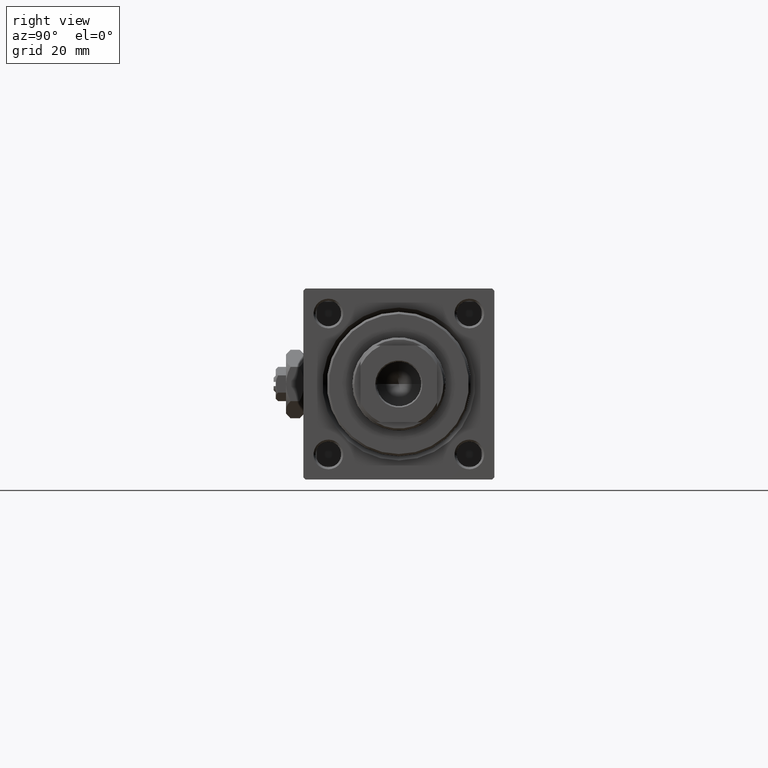
[diagram: clean part render]
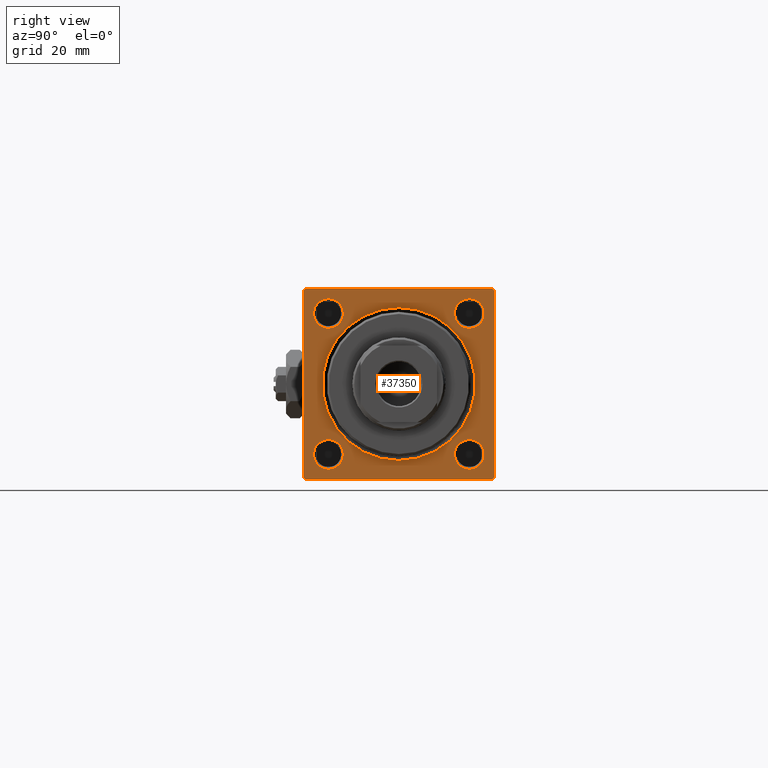
[diagram: same view with one face highlighted and labeled with its STEP entity id]
A machine part, right view. The second image highlights one B-rep face of the part: STEP entity #37350.
In plain terms, the highlighted planar face has unit normal (-1, 0, 0).
Its self-contained STEP definition (entity closure, byte-faithful):
#14 = EDGE_LOOP ( 'NONE', ( #21148, #5784, #15631, #33805, #32784, #37379, #23495, #45369 ) ) ;
#77 = DIRECTION ( 'NONE',  ( -1.000000000000000000, 0.000000000000000000, -0.000000000000000000 ) ) ;
#824 = EDGE_CURVE ( 'NONE', #4362, #49079, #9340, .T. ) ;
#1001 = EDGE_CURVE ( 'NONE', #14637, #43095, #42192, .T. ) ;
#1114 = CARTESIAN_POINT ( 'NONE',  ( 123.0000000000000142, -22.49999999999999645, -21.99999999999997868 ) ) ;
#1279 = CARTESIAN_POINT ( 'NONE',  ( 123.0000000000000142, 16.59999999999999787, -16.60000000000000497 ) ) ;
#1806 = CARTESIAN_POINT ( 'NONE',  ( 123.0000000000000142, 22.50000000000000355, -22.00000000000001066 ) ) ;
#1945 = FACE_BOUND ( 'NONE', #20656, .T. ) ;
#2803 = DIRECTION ( 'NONE',  ( 0.000000000000000000, 0.000000000000000000, 1.000000000000000000 ) ) ;
#2850 = DIRECTION ( 'NONE',  ( 0.000000000000000000, 0.7071067811865425767, -0.7071067811865525687 ) ) ;
#3520 = VERTEX_POINT ( 'NONE', #8225 ) ;
#3553 = EDGE_CURVE ( 'NONE', #38296, #43195, #37212, .T. ) ;
#4212 = AXIS2_PLACEMENT_3D ( 'NONE', #32170, #47033, #46512 ) ;
#4362 = VERTEX_POINT ( 'NONE', #22817 ) ;
#4507 = VERTEX_POINT ( 'NONE', #5040 ) ;
#4555 = CARTESIAN_POINT ( 'NONE',  ( 123.0000000000000142, -22.49999999999999645, 22.00000000000000711 ) ) ;
#4666 = CARTESIAN_POINT ( 'NONE',  ( 123.0000000000000142, 22.50000000000000355, -22.49999999999999645 ) ) ;
#4875 = PLANE ( 'NONE',  #20660 ) ;
#5040 = CARTESIAN_POINT ( 'NONE',  ( 123.0000000000000142, 16.59999999999999787, 13.10000000000001386 ) ) ;
#5126 = FACE_BOUND ( 'NONE', #28992, .T. ) ;
#5784 = ORIENTED_EDGE ( 'NONE', *, *, #17806, .T. ) ;
#5986 = DIRECTION ( 'NONE',  ( -1.000000000000000000, 0.000000000000000000, -0.000000000000000000 ) ) ;
#6030 = VECTOR ( 'NONE', #16912, 1000.000000000000000 ) ;
#6072 = CARTESIAN_POINT ( 'NONE',  ( 123.0000000000000142, 22.50000000000000355, -21.99999999999999645 ) ) ;
#6300 = LINE ( 'NONE', #1806, #21353 ) ;
#6510 = EDGE_LOOP ( 'NONE', ( #17899, #24208 ) ) ;
#7182 = CARTESIAN_POINT ( 'NONE',  ( 123.0000000000000142, 22.00000000000000355, -22.49999999999999645 ) ) ;
#8225 = CARTESIAN_POINT ( 'NONE',  ( 123.0000000000000142, -21.99999999999998224, -22.50000000000000000 ) ) ;
#9056 = EDGE_CURVE ( 'NONE', #43095, #14637, #25483, .T. ) ;
#9086 = FACE_OUTER_BOUND ( 'NONE', #14, .T. ) ;
#9340 = CIRCLE ( 'NONE', #25343, 3.499999999999989342 ) ;
#9705 = EDGE_CURVE ( 'NONE', #43195, #31136, #45135, .T. ) ;
#9783 = AXIS2_PLACEMENT_3D ( 'NONE', #20390, #45173, #20123 ) ;
#10197 = CARTESIAN_POINT ( 'NONE',  ( 123.0000000000000142, -16.60000000000000497, -16.60000000000000497 ) ) ;
#10798 = VERTEX_POINT ( 'NONE', #6072 ) ;
#11899 = ORIENTED_EDGE ( 'NONE', *, *, #17361, .T. ) ;
#12151 = CARTESIAN_POINT ( 'NONE',  ( 123.0000000000000142, -21.99999999999998224, 22.49999999999999289 ) ) ;
#12252 = ORIENTED_EDGE ( 'NONE', *, *, #16849, .T. ) ;
#12701 = CARTESIAN_POINT ( 'NONE',  ( 123.0000000000000142, 22.50000000000000355, 22.50000000000000355 ) ) ;
#13146 = CIRCLE ( 'NONE', #51063, 3.499999999999989342 ) ;
#13305 = VECTOR ( 'NONE', #41577, 1000.000000000000000 ) ;
#13367 = VERTEX_POINT ( 'NONE', #29123 ) ;
#13618 = DIRECTION ( 'NONE',  ( 0.000000000000000000, 0.000000000000000000, 1.000000000000000000 ) ) ;
#14637 = VERTEX_POINT ( 'NONE', #32369 ) ;
#14737 = CIRCLE ( 'NONE', #44238, 3.499999999999989342 ) ;
#14802 = ORIENTED_EDGE ( 'NONE', *, *, #824, .T. ) ;
#15631 = ORIENTED_EDGE ( 'NONE', *, *, #45344, .F. ) ;
#15819 = CARTESIAN_POINT ( 'NONE',  ( 123.0000000000000142, 16.59999999999999787, -20.09999999999999432 ) ) ;
#16013 = DIRECTION ( 'NONE',  ( 0.000000000000000000, 0.000000000000000000, 1.000000000000000000 ) ) ;
#16849 = EDGE_CURVE ( 'NONE', #4507, #31023, #13146, .T. ) ;
#16912 = DIRECTION ( 'NONE',  ( 0.000000000000000000, -1.000000000000000000, -2.312964634635742957E-16 ) ) ;
#17361 = EDGE_CURVE ( 'NONE', #13367, #46554, #42634, .T. ) ;
#17680 = CARTESIAN_POINT ( 'NONE',  ( 123.0000000000000142, 22.50000000000000355, 21.99999999999997513 ) ) ;
#17806 = EDGE_CURVE ( 'NONE', #47837, #3520, #47712, .T. ) ;
#17899 = ORIENTED_EDGE ( 'NONE', *, *, #25686, .T. ) ;
#18127 = AXIS2_PLACEMENT_3D ( 'NONE', #27523, #77, #48104 ) ;
#18700 = CARTESIAN_POINT ( 'NONE',  ( 123.0000000000000142, -21.99999999999999645, -22.50000000000000000 ) ) ;
#19416 = DIRECTION ( 'NONE',  ( -1.000000000000000000, 0.000000000000000000, -0.000000000000000000 ) ) ;
#19455 = AXIS2_PLACEMENT_3D ( 'NONE', #31854, #51655, #20251 ) ;
#20123 = DIRECTION ( 'NONE',  ( 0.000000000000000000, 0.000000000000000000, 1.000000000000000000 ) ) ;
#20251 = DIRECTION ( 'NONE',  ( 0.000000000000000000, 0.000000000000000000, 1.000000000000000000 ) ) ;
#20390 = CARTESIAN_POINT ( 'NONE',  ( 123.0000000000000142, 0.000000000000000000, 0.000000000000000000 ) ) ;
#20656 = EDGE_LOOP ( 'NONE', ( #12252, #43173 ) ) ;
#20660 = AXIS2_PLACEMENT_3D ( 'NONE', #21730, #21997, #25172 ) ;
#20695 = VECTOR ( 'NONE', #34339, 1000.000000000000000 ) ;
#21148 = ORIENTED_EDGE ( 'NONE', *, *, #41893, .T. ) ;
#21232 = EDGE_CURVE ( 'NONE', #41021, #10798, #51109, .T. ) ;
#21353 = VECTOR ( 'NONE', #26334, 1000.000000000000000 ) ;
#21393 = CIRCLE ( 'NONE', #30658, 18.00000000000000355 ) ;
#21730 = CARTESIAN_POINT ( 'NONE',  ( 123.0000000000000142, 0.000000000000000000, 0.000000000000000000 ) ) ;
#21884 = VECTOR ( 'NONE', #40361, 1000.000000000000000 ) ;
#21997 = DIRECTION ( 'NONE',  ( -1.000000000000000000, 0.000000000000000000, -0.000000000000000000 ) ) ;
#22052 = CARTESIAN_POINT ( 'NONE',  ( 123.0000000000000142, 16.59999999999999787, 16.60000000000000497 ) ) ;
#22817 = CARTESIAN_POINT ( 'NONE',  ( 123.0000000000000142, 16.59999999999999787, -13.10000000000001386 ) ) ;
#23127 = VECTOR ( 'NONE', #2850, 999.9999999999998863 ) ;
#23280 = CARTESIAN_POINT ( 'NONE',  ( 123.0000000000000142, 21.99999999999996092, 22.50000000000000355 ) ) ;
#23495 = ORIENTED_EDGE ( 'NONE', *, *, #3553, .T. ) ;
#24078 = CARTESIAN_POINT ( 'NONE',  ( 123.0000000000000142, 16.59999999999999787, 20.09999999999999432 ) ) ;
#24208 = ORIENTED_EDGE ( 'NONE', *, *, #37752, .T. ) ;
#25172 = DIRECTION ( 'NONE',  ( -0.000000000000000000, 0.000000000000000000, 1.000000000000000000 ) ) ;
#25343 = AXIS2_PLACEMENT_3D ( 'NONE', #1279, #49813, #33464 ) ;
#25483 = CIRCLE ( 'NONE', #37315, 3.499999999999989342 ) ;
#25686 = EDGE_CURVE ( 'NONE', #46658, #51883, #49672, .T. ) ;
#25751 = EDGE_CURVE ( 'NONE', #41021, #38296, #50727, .T. ) ;
#25789 = AXIS2_PLACEMENT_3D ( 'NONE', #50816, #19416, #46868 ) ;
#26334 = DIRECTION ( 'NONE',  ( -0.000000000000000000, 0.7071067811865573427, 0.7071067811865378028 ) ) ;
#26935 = VECTOR ( 'NONE', #27094, 1000.000000000000000 ) ;
#27094 = DIRECTION ( 'NONE',  ( 0.000000000000000000, 0.000000000000000000, -1.000000000000000000 ) ) ;
#27523 = CARTESIAN_POINT ( 'NONE',  ( 123.0000000000000142, 16.59999999999999787, -16.60000000000000497 ) ) ;
#27894 = CARTESIAN_POINT ( 'NONE',  ( 123.0000000000000142, -16.59999999999999787, 13.10000000000000675 ) ) ;
#28190 = ORIENTED_EDGE ( 'NONE', *, *, #35347, .T. ) ;
#28315 = CARTESIAN_POINT ( 'NONE',  ( 123.0000000000000142, 21.99999999999996092, 22.50000000000000355 ) ) ;
#28992 = EDGE_LOOP ( 'NONE', ( #39127, #14802 ) ) ;
#29118 = FACE_BOUND ( 'NONE', #6510, .T. ) ;
#29123 = CARTESIAN_POINT ( 'NONE',  ( 123.0000000000000142, 2.204364238465235822E-15, 18.00000000000000355 ) ) ;
#29844 = CARTESIAN_POINT ( 'NONE',  ( 123.0000000000000142, -22.49999999999999645, 22.49999999999999289 ) ) ;
#29993 = CARTESIAN_POINT ( 'NONE',  ( 123.0000000000000142, -16.59999999999999787, 20.09999999999998721 ) ) ;
#30658 = AXIS2_PLACEMENT_3D ( 'NONE', #44243, #47413, #16013 ) ;
#31023 = VERTEX_POINT ( 'NONE', #24078 ) ;
#31136 = VERTEX_POINT ( 'NONE', #4555 ) ;
#31406 = CARTESIAN_POINT ( 'NONE',  ( 123.0000000000000142, -16.60000000000000497, -13.10000000000001386 ) ) ;
#31854 = CARTESIAN_POINT ( 'NONE',  ( 123.0000000000000142, -16.60000000000000497, -16.60000000000000497 ) ) ;
#32170 = CARTESIAN_POINT ( 'NONE',  ( 123.0000000000000142, -16.59999999999999787, 16.59999999999999787 ) ) ;
#32369 = CARTESIAN_POINT ( 'NONE',  ( 123.0000000000000142, -16.60000000000000497, -20.09999999999999432 ) ) ;
#32483 = DIRECTION ( 'NONE',  ( -0.000000000000000000, -0.7071067811865573427, -0.7071067811865378028 ) ) ;
#32784 = ORIENTED_EDGE ( 'NONE', *, *, #21232, .F. ) ;
#32994 = CARTESIAN_POINT ( 'NONE',  ( 123.0000000000000142, -22.49999999999999645, 22.00000000000000711 ) ) ;
#33346 = FACE_BOUND ( 'NONE', #41692, .T. ) ;
#33464 = DIRECTION ( 'NONE',  ( 0.000000000000000000, 0.000000000000000000, 1.000000000000000000 ) ) ;
#33690 = EDGE_CURVE ( 'NONE', #40842, #10798, #6300, .T. ) ;
#33805 = ORIENTED_EDGE ( 'NONE', *, *, #33690, .T. ) ;
#34339 = DIRECTION ( 'NONE',  ( 0.000000000000000000, 0.000000000000000000, -1.000000000000000000 ) ) ;
#35347 = EDGE_CURVE ( 'NONE', #46554, #13367, #21393, .T. ) ;
#36099 = DIRECTION ( 'NONE',  ( -1.000000000000000000, 0.000000000000000000, -0.000000000000000000 ) ) ;
#36375 = ORIENTED_EDGE ( 'NONE', *, *, #9056, .T. ) ;
#37212 = LINE ( 'NONE', #12701, #6030 ) ;
#37315 = AXIS2_PLACEMENT_3D ( 'NONE', #10197, #5986, #2803 ) ;
#37350 = ADVANCED_FACE ( 'NONE', ( #1945, #29118, #33346, #5126, #45236, #9086 ), #4875, .F. ) ;
#37379 = ORIENTED_EDGE ( 'NONE', *, *, #25751, .T. ) ;
#37451 = EDGE_CURVE ( 'NONE', #49079, #4362, #40887, .T. ) ;
#37752 = EDGE_CURVE ( 'NONE', #51883, #46658, #14737, .T. ) ;
#38296 = VERTEX_POINT ( 'NONE', #28315 ) ;
#39127 = ORIENTED_EDGE ( 'NONE', *, *, #37451, .T. ) ;
#40361 = DIRECTION ( 'NONE',  ( 0.000000000000000000, -0.7071067811865573427, 0.7071067811865378028 ) ) ;
#40814 = LINE ( 'NONE', #4666, #13305 ) ;
#40842 = VERTEX_POINT ( 'NONE', #7182 ) ;
#40887 = CIRCLE ( 'NONE', #18127, 3.499999999999989342 ) ;
#41021 = VERTEX_POINT ( 'NONE', #17680 ) ;
#41577 = DIRECTION ( 'NONE',  ( 0.000000000000000000, -1.000000000000000000, -7.709882115452476934E-17 ) ) ;
#41692 = EDGE_LOOP ( 'NONE', ( #51990, #36375 ) ) ;
#41893 = EDGE_CURVE ( 'NONE', #31136, #47837, #46476, .T. ) ;
#42192 = CIRCLE ( 'NONE', #19455, 3.499999999999989342 ) ;
#42634 = CIRCLE ( 'NONE', #9783, 18.00000000000000355 ) ;
#42944 = CARTESIAN_POINT ( 'NONE',  ( 123.0000000000000142, 22.50000000000000355, 22.50000000000000355 ) ) ;
#43095 = VERTEX_POINT ( 'NONE', #31406 ) ;
#43173 = ORIENTED_EDGE ( 'NONE', *, *, #43717, .T. ) ;
#43195 = VERTEX_POINT ( 'NONE', #12151 ) ;
#43717 = EDGE_CURVE ( 'NONE', #31023, #4507, #45163, .T. ) ;
#44238 = AXIS2_PLACEMENT_3D ( 'NONE', #45053, #36099, #52181 ) ;
#44243 = CARTESIAN_POINT ( 'NONE',  ( 123.0000000000000142, 0.000000000000000000, 0.000000000000000000 ) ) ;
#45053 = CARTESIAN_POINT ( 'NONE',  ( 123.0000000000000142, -16.59999999999999787, 16.59999999999999787 ) ) ;
#45135 = LINE ( 'NONE', #32994, #49113 ) ;
#45163 = CIRCLE ( 'NONE', #25789, 3.499999999999989342 ) ;
#45173 = DIRECTION ( 'NONE',  ( -1.000000000000000000, 0.000000000000000000, -0.000000000000000000 ) ) ;
#45236 = FACE_BOUND ( 'NONE', #45949, .T. ) ;
#45344 = EDGE_CURVE ( 'NONE', #40842, #3520, #40814, .T. ) ;
#45369 = ORIENTED_EDGE ( 'NONE', *, *, #9705, .T. ) ;
#45671 = CARTESIAN_POINT ( 'NONE',  ( 123.0000000000000142, 0.000000000000000000, -18.00000000000000355 ) ) ;
#45949 = EDGE_LOOP ( 'NONE', ( #28190, #11899 ) ) ;
#46476 = LINE ( 'NONE', #29844, #20695 ) ;
#46512 = DIRECTION ( 'NONE',  ( 0.000000000000000000, 0.000000000000000000, 1.000000000000000000 ) ) ;
#46554 = VERTEX_POINT ( 'NONE', #45671 ) ;
#46658 = VERTEX_POINT ( 'NONE', #27894 ) ;
#46868 = DIRECTION ( 'NONE',  ( 0.000000000000000000, 0.000000000000000000, 1.000000000000000000 ) ) ;
#47033 = DIRECTION ( 'NONE',  ( -1.000000000000000000, 0.000000000000000000, -0.000000000000000000 ) ) ;
#47413 = DIRECTION ( 'NONE',  ( -1.000000000000000000, 0.000000000000000000, -0.000000000000000000 ) ) ;
#47712 = LINE ( 'NONE', #18700, #23127 ) ;
#47837 = VERTEX_POINT ( 'NONE', #1114 ) ;
#48104 = DIRECTION ( 'NONE',  ( 0.000000000000000000, 0.000000000000000000, 1.000000000000000000 ) ) ;
#49079 = VERTEX_POINT ( 'NONE', #15819 ) ;
#49113 = VECTOR ( 'NONE', #32483, 1000.000000000000000 ) ;
#49495 = DIRECTION ( 'NONE',  ( -1.000000000000000000, 0.000000000000000000, -0.000000000000000000 ) ) ;
#49672 = CIRCLE ( 'NONE', #4212, 3.499999999999989342 ) ;
#49813 = DIRECTION ( 'NONE',  ( -1.000000000000000000, 0.000000000000000000, -0.000000000000000000 ) ) ;
#50727 = LINE ( 'NONE', #23280, #21884 ) ;
#50816 = CARTESIAN_POINT ( 'NONE',  ( 123.0000000000000142, 16.59999999999999787, 16.60000000000000497 ) ) ;
#51063 = AXIS2_PLACEMENT_3D ( 'NONE', #22052, #49495, #13618 ) ;
#51109 = LINE ( 'NONE', #42944, #26935 ) ;
#51655 = DIRECTION ( 'NONE',  ( -1.000000000000000000, 0.000000000000000000, -0.000000000000000000 ) ) ;
#51883 = VERTEX_POINT ( 'NONE', #29993 ) ;
#51990 = ORIENTED_EDGE ( 'NONE', *, *, #1001, .T. ) ;
#52181 = DIRECTION ( 'NONE',  ( 0.000000000000000000, 0.000000000000000000, 1.000000000000000000 ) ) ;